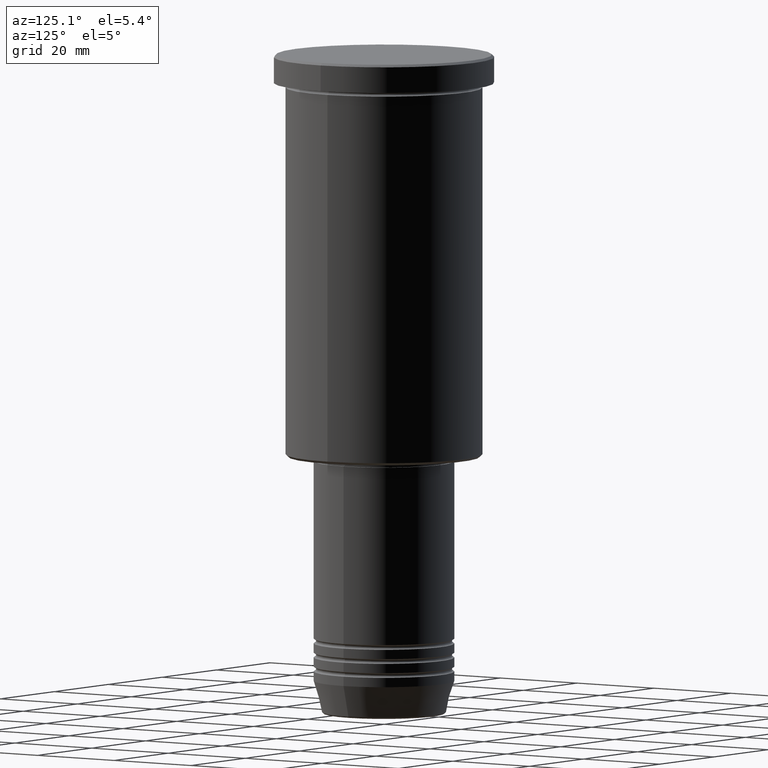
[diagram: clean part render]
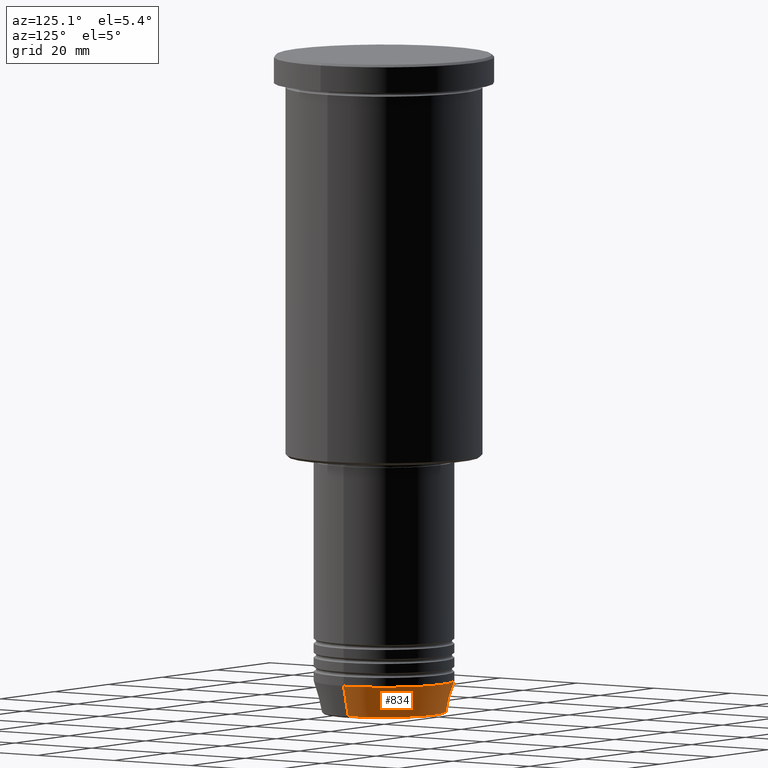
[diagram: same view with one face highlighted and labeled with its STEP entity id]
A machine part, auxiliary view. The second image highlights one B-rep face of the part: STEP entity #834.
In plain terms, the highlighted conical surface has half-angle 15 deg.
Its self-contained STEP definition (entity closure, byte-faithful):
#7 = EDGE_CURVE ( 'NONE', #384, #1170, #509, .T. ) ;
#62 = AXIS2_PLACEMENT_3D ( 'NONE', #760, #849, #1039 ) ;
#133 = CARTESIAN_POINT ( 'NONE',  ( -15.00000000000000000, 1.836970198721029589E-15, -134.0000000000000000 ) ) ;
#145 = VECTOR ( 'NONE', #780, 1000.000000000000000 ) ;
#154 = VERTEX_POINT ( 'NONE', #675 ) ;
#171 = EDGE_LOOP ( 'NONE', ( #917, #507, #343, #460 ) ) ;
#204 = AXIS2_PLACEMENT_3D ( 'NONE', #779, #329, #699 ) ;
#251 = CONICAL_SURFACE ( 'NONE', #554, 15.00000000000000000, 0.2617993877991500740 ) ;
#255 = CIRCLE ( 'NONE', #62, 15.00000000000000000 ) ;
#303 = EDGE_CURVE ( 'NONE', #384, #672, #1033, .T. ) ;
#329 = DIRECTION ( 'NONE',  ( -0.000000000000000000, -0.000000000000000000, 1.000000000000000000 ) ) ;
#343 = ORIENTED_EDGE ( 'NONE', *, *, #1053, .F. ) ;
#371 = FACE_OUTER_BOUND ( 'NONE', #171, .T. ) ;
#373 = EDGE_CURVE ( 'NONE', #1170, #154, #842, .T. ) ;
#384 = VERTEX_POINT ( 'NONE', #904 ) ;
#460 = ORIENTED_EDGE ( 'NONE', *, *, #303, .F. ) ;
#507 = ORIENTED_EDGE ( 'NONE', *, *, #373, .T. ) ;
#509 = CIRCLE ( 'NONE', #204, 13.22365507213719482 ) ;
#554 = AXIS2_PLACEMENT_3D ( 'NONE', #1110, #898, #1018 ) ;
#599 = CARTESIAN_POINT ( 'NONE',  ( 15.00000000000000000, 0.000000000000000000, -134.0000000000000000 ) ) ;
#672 = VERTEX_POINT ( 'NONE', #1010 ) ;
#675 = CARTESIAN_POINT ( 'NONE',  ( -15.00000000000000000, 1.836970198721029589E-15, -134.0000000000000000 ) ) ;
#699 = DIRECTION ( 'NONE',  ( 1.000000000000000000, 0.000000000000000000, 0.000000000000000000 ) ) ;
#760 = CARTESIAN_POINT ( 'NONE',  ( 0.000000000000000000, 0.000000000000000000, -134.0000000000000000 ) ) ;
#779 = CARTESIAN_POINT ( 'NONE',  ( 0.000000000000000000, 0.000000000000000000, -140.6294095225512706 ) ) ;
#780 = DIRECTION ( 'NONE',  ( 0.2588190451025213501, 0.000000000000000000, 0.9659258262890680902 ) ) ;
#834 = ADVANCED_FACE ( 'NONE', ( #371 ), #251, .T. ) ;
#842 = LINE ( 'NONE', #133, #1073 ) ;
#849 = DIRECTION ( 'NONE',  ( -0.000000000000000000, -0.000000000000000000, 1.000000000000000000 ) ) ;
#898 = DIRECTION ( 'NONE',  ( -0.000000000000000000, -0.000000000000000000, 1.000000000000000000 ) ) ;
#904 = CARTESIAN_POINT ( 'NONE',  ( 13.22365507213719482, 0.000000000000000000, -140.6294095225512706 ) ) ;
#917 = ORIENTED_EDGE ( 'NONE', *, *, #7, .T. ) ;
#936 = CARTESIAN_POINT ( 'NONE',  ( -13.22365507213719660, 1.728200442216588780E-15, -140.6294095225512706 ) ) ;
#999 = DIRECTION ( 'NONE',  ( -0.2588190451025213501, 3.169619151431772337E-17, 0.9659258262890680902 ) ) ;
#1010 = CARTESIAN_POINT ( 'NONE',  ( 15.00000000000000000, 0.000000000000000000, -134.0000000000000000 ) ) ;
#1018 = DIRECTION ( 'NONE',  ( 1.000000000000000000, 0.000000000000000000, 0.000000000000000000 ) ) ;
#1033 = LINE ( 'NONE', #599, #145 ) ;
#1039 = DIRECTION ( 'NONE',  ( 1.000000000000000000, 0.000000000000000000, 0.000000000000000000 ) ) ;
#1053 = EDGE_CURVE ( 'NONE', #672, #154, #255, .T. ) ;
#1073 = VECTOR ( 'NONE', #999, 1000.000000000000000 ) ;
#1110 = CARTESIAN_POINT ( 'NONE',  ( 0.000000000000000000, 0.000000000000000000, -134.0000000000000000 ) ) ;
#1170 = VERTEX_POINT ( 'NONE', #936 ) ;